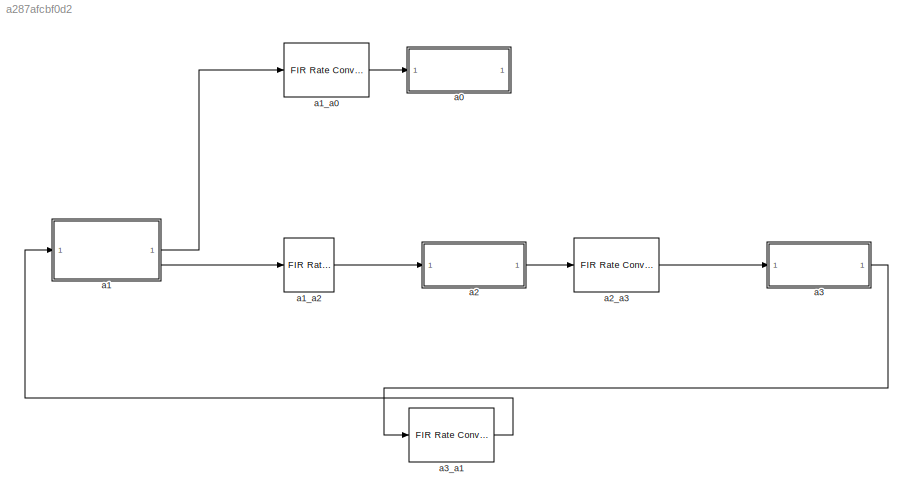
MODEL slx_a287afcbf0d2
KIND model
CONFIG AbsTol = auto
CONFIG EnableMultiTasking = off
CONFIG FixedStep = auto
CONFIG MaxStep = auto
CONFIG MinStep = auto
CONFIG PreLoadFcn = Apass = 0.005; % dB\nAstop = 80; % dB\nFstop = .101;\nM = 7;\nF = [.1 Fstop];\nA = [convertmagunits(Apass,'db','linear','pass') convertmagunits(Astop,'db','linear','stop')];\n[h,g]=ifir(M,'low',F,A);
CONFIG RelTol = 1e-3
CONFIG SampleTimeConstraint = Unconstrained
CONFIG SolverName = FixedStepDiscrete
CONFIG StartTime = 0.0
CONFIG StopTime = inf
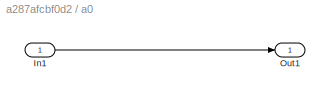
BLOCK [SubSystem] a0
BLOCK [Inport] a0/In1
BLOCK [Outport] a0/Out1
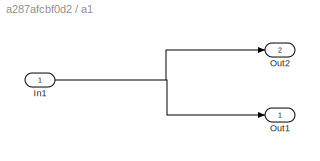
BLOCK [SubSystem] a1
  TreatAsAtomicUnit = on
BLOCK [Inport] a1/In1
BLOCK [Outport] a1/Out1
BLOCK [Outport] a1/Out2
  Port = 2
BLOCK [Reference] a1_a0  REF=dspmlti4/FIR Rate
Conversion
  SourceBlock = dspmlti4/FIR Rate\nConversion
  SourceType = FIR Rate Conversion
BLOCK [Reference] a1_a2  REF=dspmlti4/FIR Rate
Conversion
  SourceBlock = dspmlti4/FIR Rate\nConversion
  SourceType = FIR Rate Conversion
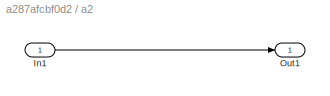
BLOCK [SubSystem] a2
BLOCK [Inport] a2/In1
BLOCK [Outport] a2/Out1
BLOCK [Reference] a2_a3  REF=dspmlti4/FIR Rate
Conversion
  SourceBlock = dspmlti4/FIR Rate\nConversion
  SourceType = FIR Rate Conversion
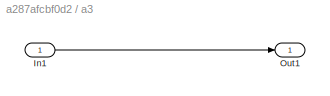
BLOCK [SubSystem] a3
  TreatAsAtomicUnit = on
BLOCK [Inport] a3/In1
BLOCK [Outport] a3/Out1
BLOCK [Reference] a3_a1  REF=dspmlti4/FIR Rate
Conversion
  SourceBlock = dspmlti4/FIR Rate\nConversion
  SourceType = FIR Rate Conversion
LINE a0/In1:1 -> a0/Out1:1
NET a1/In1:1 -> a1/Out1:1, a1/Out2:1
LINE a1:1 -> a1_a0:1
LINE a1:2 -> a1_a2:1
LINE a1_a0:1 -> a0:1
LINE a1_a2:1 -> a2:1
LINE a2/In1:1 -> a2/Out1:1
LINE a2:1 -> a2_a3:1
LINE a2_a3:1 -> a3:1
LINE a3/In1:1 -> a3/Out1:1
LINE a3:1 -> a3_a1:1
LINE a3_a1:1 -> a1:1
note: NET lines group one-source signal fan-out (src -> all destinations, sorted); 1:1 wires keep LINE
